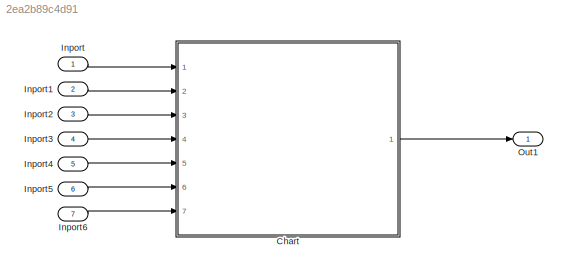
MODEL slx_2ea2b89c4d91
KIND model
CONFIG AbsTol = auto
CONFIG EnableMultiTasking = on
CONFIG FixedStep = auto
CONFIG MaxStep = auto
CONFIG MinStep = auto
CONFIG RelTol = 1e-3
CONFIG SampleTimeConstraint = Unconstrained
CONFIG Solver = FixedStepAuto
CONFIG SolverName = FixedStepAuto
CONFIG StartTime = 0.0
CONFIG StopTime = 10.0
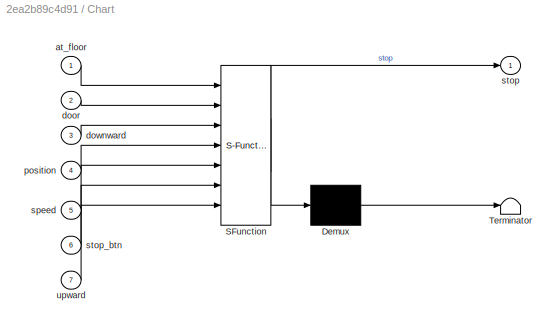
BLOCK [SubSystem] Chart
  ErrorFcn = Stateflow.Translate.translate
  PermitHierarchicalResolution = ExplicitOnly
  Ports = [7, 1]
  RequestExecContextInheritance = off
  SFBlockType = Chart
  TreatAsAtomicUnit = on
BLOCK [Demux] Chart/ Demux 
  Outputs = 1
  Ports = [1, 1]
BLOCK [S-Function] Chart/ SFunction 
  EnableBusSupport = on
  FunctionName = sf_sfun
  PortCounts = [7 2]
  Ports = [7, 2]
  SFcnIsStateOwnerBlock = off
  SFunctionDeploymentMode = off
  Tag = Stateflow S-Function safety 3
BLOCK [Terminator] Chart/ Terminator 
BLOCK [Inport] Chart/at_floor
  IconDisplay = Port number
BLOCK [Inport] Chart/door
  IconDisplay = Port number
  Port = 2
BLOCK [Inport] Chart/downward
  IconDisplay = Port number
  Port = 3
BLOCK [Inport] Chart/position
  IconDisplay = Port number
  Port = 4
BLOCK [Inport] Chart/speed
  IconDisplay = Port number
  Port = 5
BLOCK [Outport] Chart/stop
  IconDisplay = Port number
BLOCK [Inport] Chart/stop_btn
  IconDisplay = Port number
  Port = 6
BLOCK [Inport] Chart/upward
  IconDisplay = Port number
  Port = 7
BLOCK [Inport] Inport
  IconDisplay = Port number
BLOCK [Inport] Inport1
  IconDisplay = Port number
  Port = 2
BLOCK [Inport] Inport2
  IconDisplay = Port number
  Port = 3
BLOCK [Inport] Inport3
  IconDisplay = Port number
  Port = 4
BLOCK [Inport] Inport4
  IconDisplay = Port number
  Port = 5
BLOCK [Inport] Inport5
  IconDisplay = Port number
  Port = 6
BLOCK [Inport] Inport6
  IconDisplay = Port number
  Port = 7
BLOCK [Outport] Out1
  IconDisplay = Port number
LINE Chart:1 -> Out1:1
LINE Inport1:1 -> Chart:2
LINE Inport2:1 -> Chart:3
LINE Inport3:1 -> Chart:4
LINE Inport4:1 -> Chart:5
LINE Inport5:1 -> Chart:6
LINE Inport6:1 -> Chart:7
LINE Inport:1 -> Chart:1
CHART Chart states=7 transitions=19
  STATE_LABEL 'down_stop\nentry :\nstop = 1;'
  STATE_LABEL 'both_dir_stop\nentry:\nstop = 1;'
  STATE_LABEL 'monitor\nduring:\nstop = 0;\n'
  STATE_LABEL 'door_stop\nentry :\nstop = 1;'
  STATE_LABEL 'stop_button\nentry :\nstop = 1;'
  STATE_LABEL 'speed_stop\nentry :\nstop = 1;'
  STATE_LABEL 'top_stop\nentry :\nstop = 1;'
